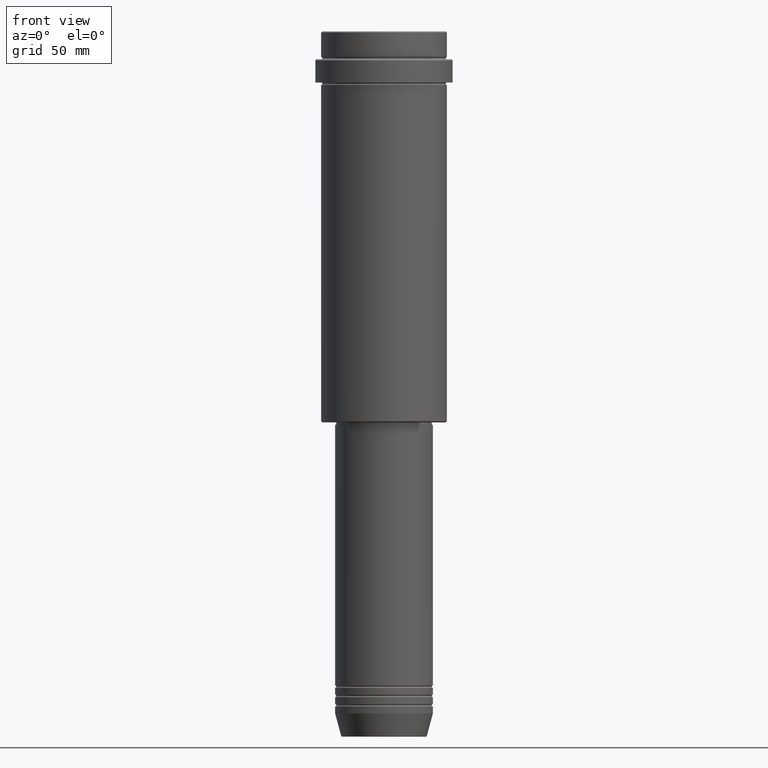
[diagram: clean part render]
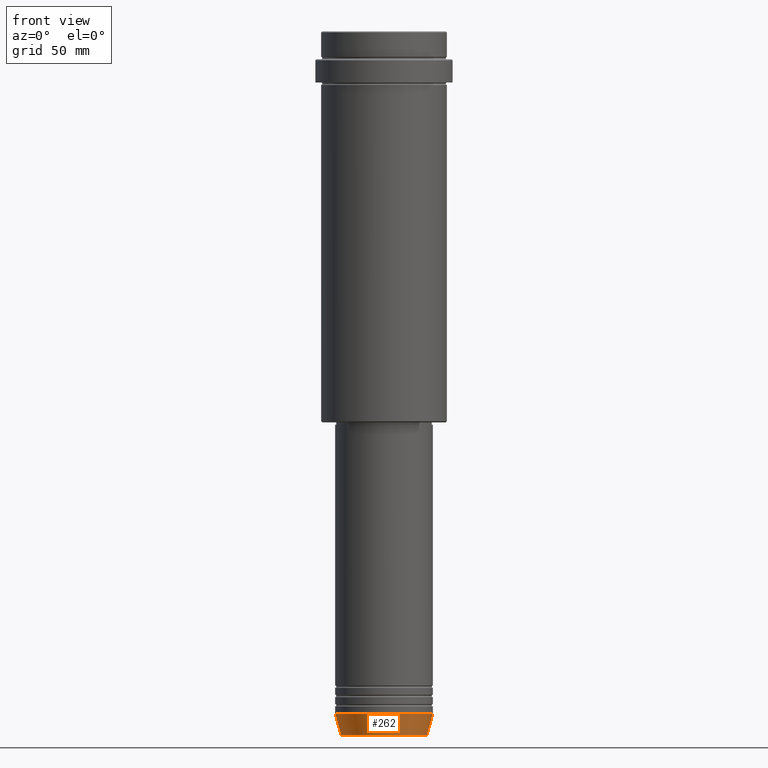
[diagram: same view with one face highlighted and labeled with its STEP entity id]
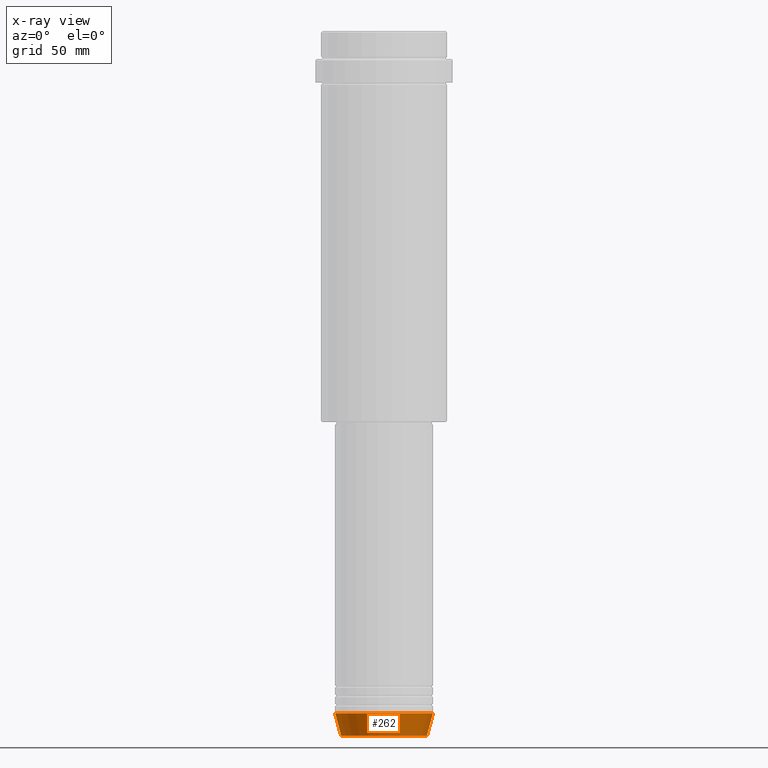
[diagram: x-ray of the same camera — body ghosted, the highlighted face saturated]
A machine part, front view. The second image highlights one B-rep face of the part: STEP entity #262.
The next image is the same camera in x-ray: the body ghosted, the highlighted face saturated — about 0% of this face is hidden behind the body in this view.
In plain terms, the highlighted conical surface has half-angle 15 deg.
Its self-contained STEP definition (entity closure, byte-faithful):
#44 = VERTEX_POINT ( 'NONE', #1234 ) ;
#61 = DIRECTION ( 'NONE',  ( 1.000000000000000000, 0.000000000000000000, 0.000000000000000000 ) ) ;
#63 = CARTESIAN_POINT ( 'NONE',  ( 18.41980749484383750, 0.000000000000000000, -302.6294095225512706 ) ) ;
#84 = DIRECTION ( 'NONE',  ( -0.000000000000000000, -0.000000000000000000, 1.000000000000000000 ) ) ;
#168 = CIRCLE ( 'NONE', #399, 21.00000000000000000 ) ;
#181 = CARTESIAN_POINT ( 'NONE',  ( 0.000000000000000000, 0.000000000000000000, -293.0000000000000568 ) ) ;
#237 = CARTESIAN_POINT ( 'NONE',  ( 21.00000000000000000, 0.000000000000000000, -293.0000000000000568 ) ) ;
#262 = ADVANCED_FACE ( 'NONE', ( #713 ), #489, .T. ) ;
#291 = DIRECTION ( 'NONE',  ( -0.2588190451025211836, 3.169619151431770488E-17, 0.9659258262890680902 ) ) ;
#292 = VERTEX_POINT ( 'NONE', #1256 ) ;
#309 = LINE ( 'NONE', #504, #1353 ) ;
#392 = EDGE_CURVE ( 'NONE', #292, #44, #309, .T. ) ;
#399 = AXIS2_PLACEMENT_3D ( 'NONE', #181, #623, #938 ) ;
#408 = EDGE_CURVE ( 'NONE', #44, #886, #168, .T. ) ;
#456 = EDGE_LOOP ( 'NONE', ( #1334, #572, #485, #909 ) ) ;
#485 = ORIENTED_EDGE ( 'NONE', *, *, #889, .T. ) ;
#489 = CONICAL_SURFACE ( 'NONE', #852, 21.00000000000000000, 0.2617993877991499074 ) ;
#497 = CARTESIAN_POINT ( 'NONE',  ( 0.000000000000000000, 0.000000000000000000, -302.6294095225512706 ) ) ;
#504 = CARTESIAN_POINT ( 'NONE',  ( -21.00000000000000000, 2.571758278209441661E-15, -293.0000000000000568 ) ) ;
#520 = VERTEX_POINT ( 'NONE', #63 ) ;
#553 = CIRCLE ( 'NONE', #989, 18.41980749484383750 ) ;
#572 = ORIENTED_EDGE ( 'NONE', *, *, #1096, .T. ) ;
#599 = DIRECTION ( 'NONE',  ( 1.000000000000000000, 0.000000000000000000, 0.000000000000000000 ) ) ;
#623 = DIRECTION ( 'NONE',  ( -0.000000000000000000, -0.000000000000000000, 1.000000000000000000 ) ) ;
#713 = FACE_OUTER_BOUND ( 'NONE', #456, .T. ) ;
#852 = AXIS2_PLACEMENT_3D ( 'NONE', #1354, #1230, #599 ) ;
#886 = VERTEX_POINT ( 'NONE', #237 ) ;
#889 = EDGE_CURVE ( 'NONE', #520, #886, #1030, .T. ) ;
#909 = ORIENTED_EDGE ( 'NONE', *, *, #408, .F. ) ;
#938 = DIRECTION ( 'NONE',  ( 1.000000000000000000, 0.000000000000000000, 0.000000000000000000 ) ) ;
#989 = AXIS2_PLACEMENT_3D ( 'NONE', #497, #84, #61 ) ;
#1011 = DIRECTION ( 'NONE',  ( 0.2588190451025211836, 0.000000000000000000, 0.9659258262890680902 ) ) ;
#1030 = LINE ( 'NONE', #1107, #1282 ) ;
#1096 = EDGE_CURVE ( 'NONE', #292, #520, #553, .T. ) ;
#1107 = CARTESIAN_POINT ( 'NONE',  ( 21.00000000000000000, 0.000000000000000000, -293.0000000000000568 ) ) ;
#1230 = DIRECTION ( 'NONE',  ( -0.000000000000000000, -0.000000000000000000, 1.000000000000000000 ) ) ;
#1234 = CARTESIAN_POINT ( 'NONE',  ( -21.00000000000000000, 2.571758278209441661E-15, -293.0000000000000568 ) ) ;
#1256 = CARTESIAN_POINT ( 'NONE',  ( -18.41980749484383750, 2.413767053578267458E-15, -302.6294095225512706 ) ) ;
#1282 = VECTOR ( 'NONE', #1011, 1000.000000000000114 ) ;
#1334 = ORIENTED_EDGE ( 'NONE', *, *, #392, .F. ) ;
#1353 = VECTOR ( 'NONE', #291, 1000.000000000000114 ) ;
#1354 = CARTESIAN_POINT ( 'NONE',  ( 0.000000000000000000, 0.000000000000000000, -293.0000000000000568 ) ) ;